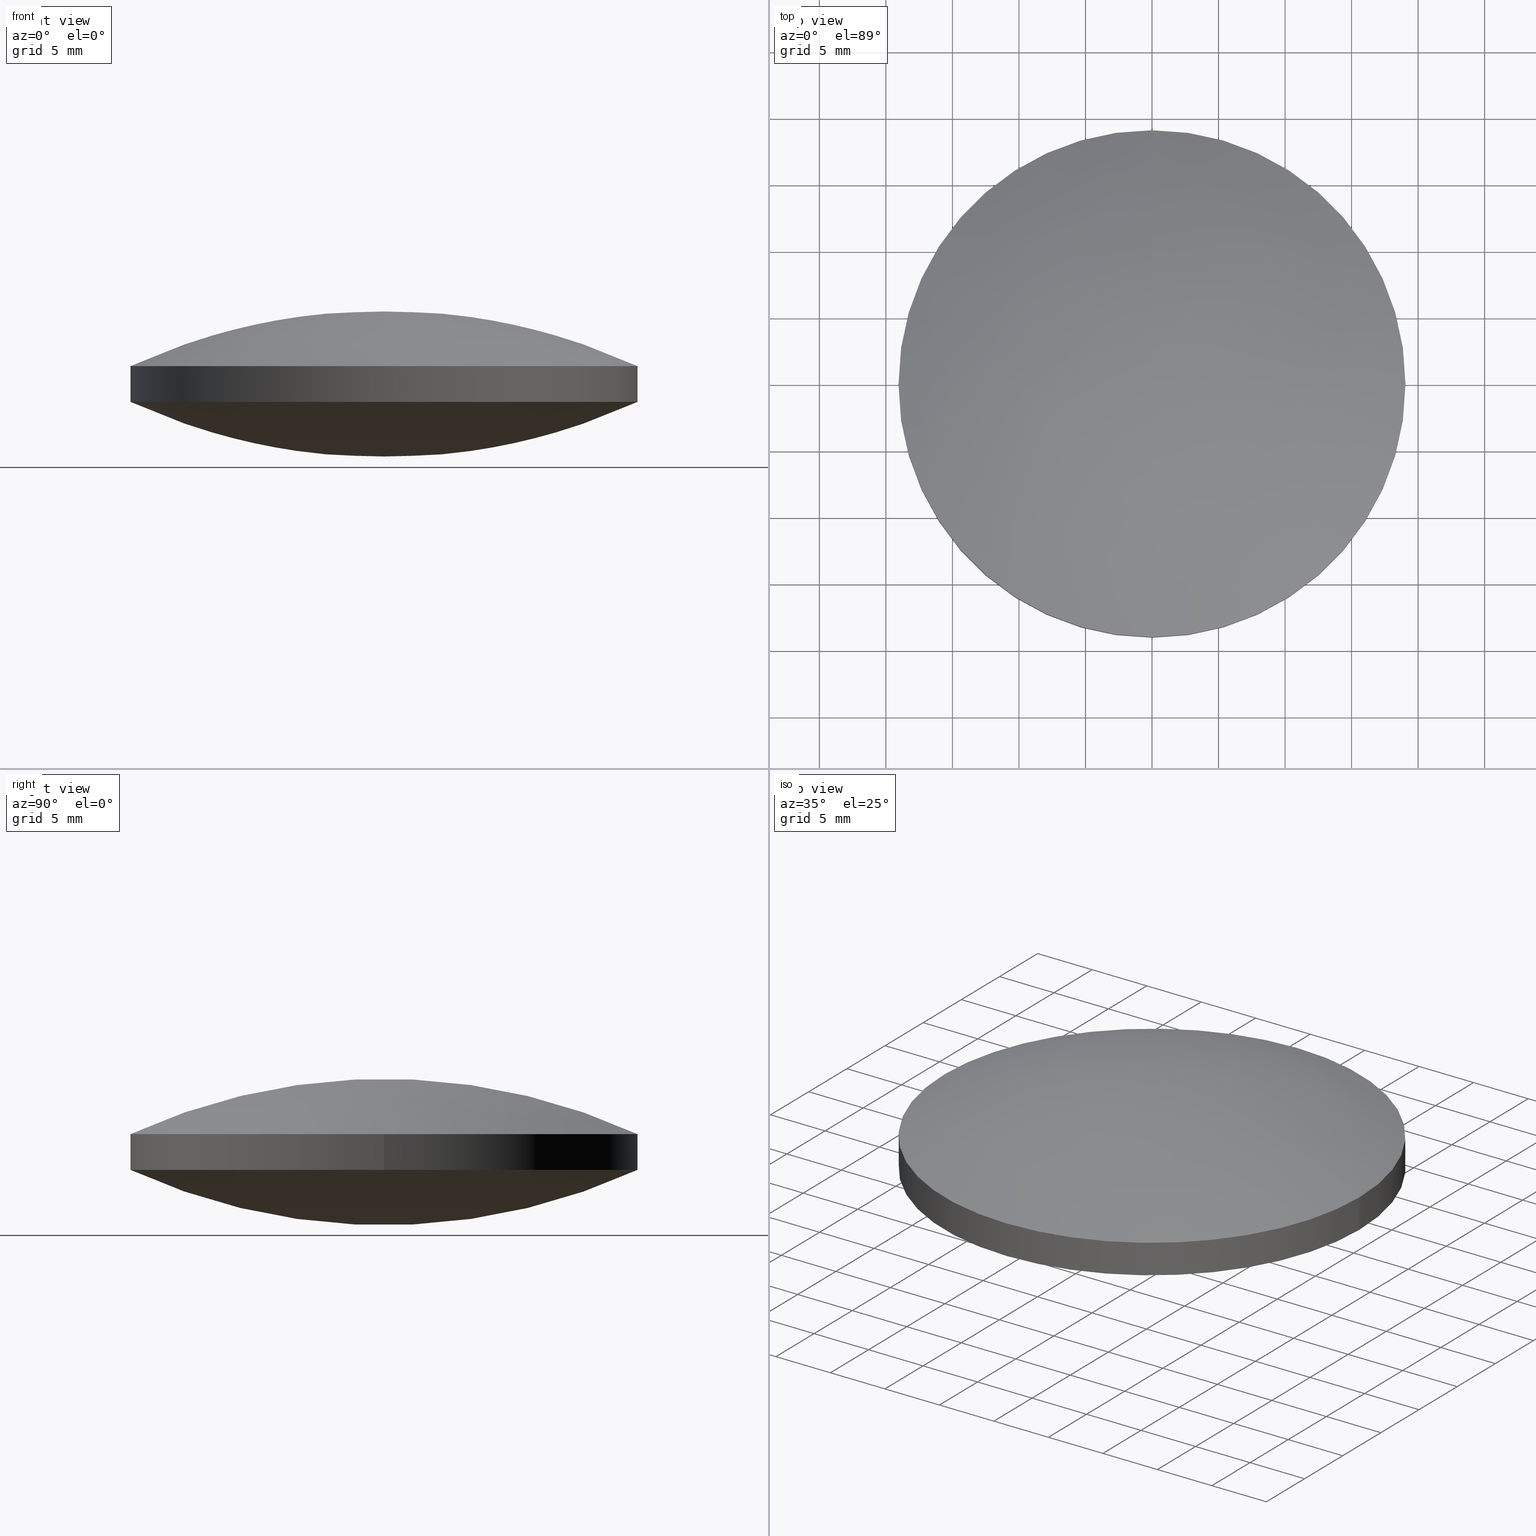
[diagram: canonical four-view strip — front | top / right | iso, engineering-drawing reading convention]
A machine part, canonical four-view strip (front | top / right | iso — engineering-drawing reading convention). The complete STEP part file that produces these views, byte-faithful:
ISO-10303-21;
HEADER;
FILE_DESCRIPTION (( 'STEP AP203' ),
    '1' );
FILE_NAME ('111-1404E UVFS bi-cx 38.1 F50.STEP',
    '2019-01-07T12:56:53',
    ( '' ),
    ( '' ),
    'SwSTEP 2.0',
    'SolidWorks 2017',
    '' );
FILE_SCHEMA (( 'CONFIG_CONTROL_DESIGN' ));
ENDSEC;

DATA;
#1 = VERTEX_POINT ( 'NONE', #118 ) ;
#2 = DIRECTION ( 'NONE',  ( 1.000000000000000000, -8.881784197001252300E-016, 0.0000000000000000000 ) ) ;
#3 = ORIENTED_EDGE ( 'NONE', *, *, #78, .F. ) ;
#4 = DIRECTION ( 'NONE',  ( -0.0000000000000000000, -0.0000000000000000000, -1.000000000000000000 ) ) ;
#5 = CARTESIAN_POINT ( 'NONE',  ( 6.859724987162779900, -6.845478120576448300, -1.511125564110183700 ) ) ;
#6 = DIRECTION ( 'NONE',  ( -0.0000000000000000000, -0.0000000000000000000, -1.000000000000000000 ) ) ;
#7 = EDGE_CURVE ( 'NONE', #292, #1, #197, .T. ) ;
#8 = PERSON_AND_ORGANIZATION ( #71, #280 ) ;
#9 = ORIENTED_EDGE ( 'NONE', *, *, #35, .T. ) ;
#10 = AXIS2_PLACEMENT_3D ( 'NONE', #148, #28, #2 ) ;
#11 = CARTESIAN_POINT ( 'NONE',  ( -19.05000000000000400, 1.444773732675583000E-015, 4.153809354856820200 ) ) ;
#12 = ORIENTED_EDGE ( 'NONE', *, *, #288, .F. ) ;
#13 = AXIS2_PLACEMENT_3D ( 'NONE', #33, #55, #127 ) ;
#14 = DIRECTION ( 'NONE',  ( -1.000000000000000000, 0.0000000000000000000, 3.208982423888019900E-016 ) ) ;
#15 = CARTESIAN_POINT ( 'NONE',  ( 0.0000000000000000000, 0.0000000000000000000, 0.0000000000000000000 ) ) ;
#16 = PERSON_AND_ORGANIZATION ( #71, #280 ) ;
#17 = ORIENTED_EDGE ( 'NONE', *, *, #293, .T. ) ;
#18 = APPROVAL_STATUS ( 'not_yet_approved' ) ;
#19 = APPROVAL_PERSON_ORGANIZATION ( #144, #232, #191 ) ;
#20 = AXIS2_PLACEMENT_3D ( 'NONE', #215, #24, #251 ) ;
#21 = PERSON_AND_ORGANIZATION ( #71, #280 ) ;
#22 = VERTEX_POINT ( 'NONE', #145 ) ;
#23 = CC_DESIGN_APPROVAL ( #92, ( #291 ) ) ;
#24 = DIRECTION ( 'NONE',  ( 0.0000000000000000000, 0.0000000000000000000, 1.000000000000000000 ) ) ;
#25 = LOCAL_TIME ( 14, 56, 53.00000000000000000, #294 ) ;
#26 = AXIS2_PLACEMENT_3D ( 'NONE', #146, #255, #121 ) ;
#27 = ADVANCED_FACE ( 'NONE', ( #295 ), #269, .T. ) ;
#28 = DIRECTION ( 'NONE',  ( -0.0000000000000000000, -0.0000000000000000000, -1.000000000000000000 ) ) ;
#29 = AXIS2_PLACEMENT_3D ( 'NONE', #159, #263, #39 ) ;
#30 = LINE ( 'NONE', #209, #213 ) ;
#31 = CARTESIAN_POINT ( 'NONE',  ( -13.56008348748277600, -6.845478120576441200, 11.04108377331125400 ) ) ;
#32 = AXIS2_PLACEMENT_3D ( 'NONE', #15, #187, #228 ) ;
#33 = CARTESIAN_POINT ( 'NONE',  ( -4.662936703425659800E-015, -8.881784197001250400E-016, 6.846190645143179800 ) ) ;
#34 = CARTESIAN_POINT ( 'NONE',  ( -6.859724987162827000, -6.845478120576445700, -1.511125564110184200 ) ) ;
#35 = EDGE_CURVE ( 'NONE', #1, #219, #214, .T. ) ;
#36 = DIRECTION ( 'NONE',  ( 1.000000000000000000, 0.0000000000000000000, 0.0000000000000000000 ) ) ;
#37 = CARTESIAN_POINT ( 'NONE',  ( 11.90673879215715300, -19.26412198409376600, 5.456680184154031100 ) ) ;
#38 = DATE_AND_TIME ( #93, #45 ) ;
#39 = DIRECTION ( 'NONE',  ( 1.000000000000000000, 8.881784197001252300E-016, 0.0000000000000000000 ) ) ;
#40 = AXIS2_PLACEMENT_3D ( 'NONE', #241, #14, #130 ) ;
#41 = CARTESIAN_POINT ( 'NONE',  ( 6.023337074847408000, -19.26412198409376600, 6.747483712963816800 ) ) ;
#42 = CC_DESIGN_PERSON_AND_ORGANIZATION_ASSIGNMENT ( #21, #212, ( #291 ) ) ;
#43 = ORIENTED_EDGE ( 'NONE', *, *, #78, .T. ) ;
#44 = APPROVAL_ROLE ( '' ) ;
#45 = LOCAL_TIME ( 14, 56, 53.00000000000000000, #103 ) ;
#46 = EDGE_LOOP ( 'NONE', ( #63, #192, #230, #171, #123, #94 ) ) ;
#47 = CLOSED_SHELL ( 'NONE', ( #124, #119, #205, #96, #27, #200 ) ) ;
#48 =( BOUNDED_SURFACE ( )  B_SPLINE_SURFACE ( 3, 3, ( 
 ( #185, #37, #41, #82 ),
 ( #135, #57, #206, #58 ),
 ( #101, #224, #133, #80 ),
 ( #102, #289, #134, #227 ) ),
 .UNSPECIFIED., .F., .F., .F. ) 
 B_SPLINE_SURFACE_WITH_KNOTS ( ( 4, 4 ),
 ( 4, 4 ),
 ( 0.0000000000000000000, 1.000000000000000000 ),
 ( 0.0000000000000000000, 1.000000000000000000 ),
 .UNSPECIFIED. ) 
 GEOMETRIC_REPRESENTATION_ITEM ( )  RATIONAL_B_SPLINE_SURFACE ( (
 ( 1.000000000000000000, 0.9845118682220205300, 0.9845118682220205300, 1.000000000000000000),
 ( 0.9380460913893327000, 0.9235175099120761500, 0.9235175099120761500, 0.9380460913893327000),
 ( 0.9380460913893327000, 0.9235175099120761500, 0.9235175099120761500, 0.9380460913893327000),
 ( 1.000000000000000000, 0.9845118682220205300, 0.9845118682220205300, 1.000000000000000000) ) ) 
 REPRESENTATION_ITEM ( '' )  SURFACE ( )  );
#49 = DIRECTION ( 'NONE',  ( 1.000000000000000000, 0.0000000000000000000, 0.0000000000000000000 ) ) ;
#50 = APPROVAL_PERSON_ORGANIZATION ( #8, #152, #44 ) ;
#51 = CC_DESIGN_APPROVAL ( #152, ( #231 ) ) ;
#52 = ORIENTED_EDGE ( 'NONE', *, *, #244, .T. ) ;
#53 = CARTESIAN_POINT ( 'NONE',  ( 6.023337074847367100, -19.26412198409376200, 4.252516287036197400 ) ) ;
#54 = CARTESIAN_POINT ( 'NONE',  ( -17.37683644862781000, 19.26412198409373700, 8.064950468004463200 ) ) ;
#55 = DIRECTION ( 'NONE',  ( -0.0000000000000000000, -0.0000000000000000000, -1.000000000000000000 ) ) ;
#56 = CARTESIAN_POINT ( 'NONE',  ( -17.37683644862777800, 19.26412198409374800, 2.935049531995540800 ) ) ;
#57 = CARTESIAN_POINT ( 'NONE',  ( 13.56008348748281700, -6.845478120576441200, 11.04108377331124300 ) ) ;
#58 = CARTESIAN_POINT ( 'NONE',  ( 2.775557561562891400E-014, -6.845478120576441200, 12.51112556411020000 ) ) ;
#59 = DATE_AND_TIME ( #162, #122 ) ;
#60 = ORIENTED_EDGE ( 'NONE', *, *, #147, .T. ) ;
#61 = CARTESIAN_POINT ( 'NONE',  ( -4.662936703425659800E-015, -8.881784197001250400E-016, 4.153809354856820200 ) ) ;
#62 = DIRECTION ( 'NONE',  ( 0.0000000000000000000, 0.0000000000000000000, 1.000000000000000000 ) ) ;
#63 = ORIENTED_EDGE ( 'NONE', *, *, #147, .F. ) ;
#64 = EDGE_CURVE ( 'NONE', #88, #276, #281, .T. ) ;
#65 = UNCERTAINTY_MEASURE_WITH_UNIT (LENGTH_MEASURE( 1.000000000000000100E-005 ), #272, 'distance_accuracy_value', 'NONE');
#66 = SHAPE_DEFINITION_REPRESENTATION ( #110, #141 ) ;
#67 = ORIENTED_EDGE ( 'NONE', *, *, #114, .F. ) ;
#68 = CC_DESIGN_PERSON_AND_ORGANIZATION_ASSIGNMENT ( #271, #140, ( #180 ) ) ;
#69 = COORDINATED_UNIVERSAL_TIME_OFFSET ( 2, 0, .AHEAD. ) ;
#70 = CIRCLE ( 'NONE', #258, 19.05000000000000100 ) ;
#71 = PERSON ( 'UNSPECIFIED', 'UNSPECIFIED', 'UNSPECIFIED', ('UNSPECIFIED'), ('UNSPECIFIED'), ('UNSPECIFIED') ) ;
#72 = LINE ( 'NONE', #11, #259 ) ;
#73 = CARTESIAN_POINT ( 'NONE',  ( 6.023337074847367100, 19.26412198409373400, 4.252516287036183200 ) ) ;
#74 = CARTESIAN_POINT ( 'NONE',  ( -6.859724987162828700, 6.845478120576419900, -1.511125564110194600 ) ) ;
#75 = PERSON_AND_ORGANIZATION ( #71, #280 ) ;
#76 = CARTESIAN_POINT ( 'NONE',  ( -1.872193478806382800E-014, 6.845478120576418100, -1.511125564110191900 ) ) ;
#77 = CARTESIAN_POINT ( 'NONE',  ( -17.37683644862777800, -19.26412198409376600, 2.935049531995540800 ) ) ;
#78 = EDGE_CURVE ( 'NONE', #219, #173, #70, .T. ) ;
#79 = CARTESIAN_POINT ( 'NONE',  ( -19.05000000000000400, 1.444773732675583000E-015, 4.153809354856820200 ) ) ;
#80 = CARTESIAN_POINT ( 'NONE',  ( 2.775557561562891400E-014, 6.845478120576424400, 12.51112556411020000 ) ) ;
#81 = DIRECTION ( 'NONE',  ( 1.000000000000000000, -8.881784197001252300E-016, 0.0000000000000000000 ) ) ;
#82 = CARTESIAN_POINT ( 'NONE',  ( 2.428612866367529900E-014, -19.26412198409376600, 6.747483712963818500 ) ) ;
#83 = EDGE_CURVE ( 'NONE', #247, #88, #104, .T. ) ;
#84 = MECHANICAL_CONTEXT ( 'NONE', #138, 'mechanical' ) ;
#85 = APPLICATION_PROTOCOL_DEFINITION ( 'international standard', 'config_control_design', 1994, #168 ) ;
#86 = APPROVAL_STATUS ( 'not_yet_approved' ) ;
#87 = CALENDAR_DATE ( 2019, 7, 1 ) ;
#88 = VERTEX_POINT ( 'NONE', #253 ) ;
#89 = CARTESIAN_POINT ( 'NONE',  ( -17.37683644862781000, -19.26412198409375900, 8.064950468004477500 ) ) ;
#90 = CARTESIAN_POINT ( 'NONE',  ( -11.90673879215715300, -19.26412198409375900, 5.543319815845978700 ) ) ;
#91 = CARTESIAN_POINT ( 'NONE',  ( -6.023337074847408000, 19.26412198409373400, 4.252516287036182300 ) ) ;
#92 = APPROVAL ( #290, 'UNSPECIFIED' ) ;
#93 = CALENDAR_DATE ( 2019, 7, 1 ) ;
#94 = ORIENTED_EDGE ( 'NONE', *, *, #293, .F. ) ;
#95 = CARTESIAN_POINT ( 'NONE',  ( 17.37683644862777000, 19.26412198409373700, 8.064950468004450800 ) ) ;
#96 = ADVANCED_FACE ( 'NONE', ( #242 ), #190, .T. ) ;
#97 = CARTESIAN_POINT ( 'NONE',  ( 1.872193478806382100E-014, -6.845478120576441200, 12.51112556411019700 ) ) ;
#98 = CARTESIAN_POINT ( 'NONE',  ( -2.428612866367529900E-014, -19.26412198409376200, 4.252516287036193900 ) ) ;
#99 = CARTESIAN_POINT ( 'NONE',  ( -2.775557561562891400E-014, 6.845478120576420800, -1.511125564110197900 ) ) ;
#100 = ORIENTED_EDGE ( 'NONE', *, *, #229, .F. ) ;
#101 = CARTESIAN_POINT ( 'NONE',  ( 19.78974739472200600, 6.845478120576424400, 8.169304794638435400 ) ) ;
#102 = CARTESIAN_POINT ( 'NONE',  ( 17.37683644862781000, 19.26412198409374800, 2.935049531995533200 ) ) ;
#103 = COORDINATED_UNIVERSAL_TIME_OFFSET ( 2, 0, .AHEAD. ) ;
#104 = CIRCLE ( 'NONE', #156, 19.05000000000000100 ) ;
#105 = CC_DESIGN_PERSON_AND_ORGANIZATION_ASSIGNMENT ( #207, #111, ( #291 ) ) ;
#106 = APPROVAL_ROLE ( '' ) ;
#107 = ORIENTED_EDGE ( 'NONE', *, *, #244, .F. ) ;
#108 = PERSON_AND_ORGANIZATION_ROLE ( 'classification_officer' ) ;
#109 =( NAMED_UNIT ( * ) SI_UNIT ( $, .STERADIAN. ) SOLID_ANGLE_UNIT ( ) );
#110 = PRODUCT_DEFINITION_SHAPE ( 'NONE', 'NONE',  #180 ) ;
#111 = PERSON_AND_ORGANIZATION_ROLE ( 'creator' ) ;
#112 = CALENDAR_DATE ( 2019, 7, 1 ) ;
#113 = ORIENTED_EDGE ( 'NONE', *, *, #83, .F. ) ;
#114 = EDGE_CURVE ( 'NONE', #173, #292, #287, .T. ) ;
#115 = CARTESIAN_POINT ( 'NONE',  ( 1.687239224827240600E-014, -19.26412198409376600, 6.747483712963811400 ) ) ;
#116 = EDGE_LOOP ( 'NONE', ( #3, #139, #67 ) ) ;
#117 = CARTESIAN_POINT ( 'NONE',  ( -4.662936703425659800E-015, -8.881784197001250400E-016, 6.846190645143179800 ) ) ;
#118 = CARTESIAN_POINT ( 'NONE',  ( 19.04999999999999700, -8.881784197001250400E-016, 6.846190645143179800 ) ) ;
#119 = ADVANCED_FACE ( 'NONE', ( #188 ), #248, .T. ) ;
#120 = PRODUCT ( '111-1404E UVFS bi-cx 38.1 F50', '111-1404E UVFS bi-cx 38.1 F50', '', ( #84 ) ) ;
#121 = DIRECTION ( 'NONE',  ( 1.000000000000000000, 0.0000000000000000000, 0.0000000000000000000 ) ) ;
#122 = LOCAL_TIME ( 14, 56, 53.00000000000000000, #69 ) ;
#123 = ORIENTED_EDGE ( 'NONE', *, *, #136, .F. ) ;
#124 = ADVANCED_FACE ( 'NONE', ( #154 ), #239, .T. ) ;
#125 = CARTESIAN_POINT ( 'NONE',  ( -13.56008348748281600, -6.845478120576445700, -0.04108377331123050400 ) ) ;
#126 = CARTESIAN_POINT ( 'NONE',  ( -6.023337074847408000, -19.26412198409376200, 4.252516287036197400 ) ) ;
#127 = DIRECTION ( 'NONE',  ( 1.000000000000000000, 0.0000000000000000000, 0.0000000000000000000 ) ) ;
#128 = CARTESIAN_POINT ( 'NONE',  ( 19.78974739472196700, 6.845478120576419900, 2.830695205361553900 ) ) ;
#129 = CARTESIAN_POINT ( 'NONE',  ( -6.023337074847369800, -19.26412198409376600, 6.747483712963814100 ) ) ;
#130 = DIRECTION ( 'NONE',  ( 0.0000000000000000000, -1.000000000000000000, 0.0000000000000000000 ) ) ;
#131 = CARTESIAN_POINT ( 'NONE',  ( 1.690406712932035900E-014, -19.05000000000001100, 6.846190645143182400 ) ) ;
#132 = ORIENTED_EDGE ( 'NONE', *, *, #35, .F. ) ;
#133 = CARTESIAN_POINT ( 'NONE',  ( 6.859724987162828700, 6.845478120576423500, 12.51112556411019500 ) ) ;
#134 = CARTESIAN_POINT ( 'NONE',  ( 6.023337074847408000, 19.26412198409374800, 6.747483712963816800 ) ) ;
#135 = CARTESIAN_POINT ( 'NONE',  ( 19.78974739472200600, -6.845478120576441200, 8.169304794638435400 ) ) ;
#136 = EDGE_CURVE ( 'NONE', #247, #1, #30, .T. ) ;
#137 = DATE_AND_TIME ( #112, #174 ) ;
#138 = APPLICATION_CONTEXT ( 'configuration controlled 3d designs of mechanical parts and assemblies' ) ;
#139 = ORIENTED_EDGE ( 'NONE', *, *, #229, .T. ) ;
#140 = PERSON_AND_ORGANIZATION_ROLE ( 'creator' ) ;
#141 = ADVANCED_BREP_SHAPE_REPRESENTATION ( '111-1404E UVFS bi-cx 38.1 F50', ( #243, #32 ), #202 ) ;
#142 = SECURITY_CLASSIFICATION_LEVEL ( 'unclassified' ) ;
#143 = CALENDAR_DATE ( 2019, 7, 1 ) ;
#144 = PERSON_AND_ORGANIZATION ( #71, #280 ) ;
#145 = CARTESIAN_POINT ( 'NONE',  ( -1.690406712932035900E-014, 19.04999999999999400, 4.153809354856816700 ) ) ;
#146 = CARTESIAN_POINT ( 'NONE',  ( -4.662936703425659800E-015, -8.881784197001250400E-016, 4.153809354856820200 ) ) ;
#147 = EDGE_CURVE ( 'NONE', #276, #22, #254, .T. ) ;
#148 = CARTESIAN_POINT ( 'NONE',  ( -4.662936703425659800E-015, -8.881784197001250400E-016, 6.846190645143179800 ) ) ;
#149 = FACE_OUTER_BOUND ( 'NONE', #46, .T. ) ;
#150 = DIRECTION ( 'NONE',  ( -0.0000000000000000000, -0.0000000000000000000, -1.000000000000000000 ) ) ;
#151 = CARTESIAN_POINT ( 'NONE',  ( 17.37683644862777000, -19.26412198409376200, 8.064950468004465000 ) ) ;
#152 = APPROVAL ( #18, 'UNSPECIFIED' ) ;
#153 = CIRCLE ( 'NONE', #40, 45.76000000000000500 ) ;
#154 = FACE_OUTER_BOUND ( 'NONE', #163, .T. ) ;
#155 = CARTESIAN_POINT ( 'NONE',  ( 13.56008348748277300, 6.845478120576419000, -0.04108377331125002300 ) ) ;
#156 = AXIS2_PLACEMENT_3D ( 'NONE', #220, #6, #36 ) ;
#157 = CARTESIAN_POINT ( 'NONE',  ( -11.90673879215711800, 19.26412198409374800, 5.456680184154038200 ) ) ;
#158 = LOCAL_TIME ( 14, 56, 53.00000000000000000, #169 ) ;
#159 = CARTESIAN_POINT ( 'NONE',  ( -4.662936703425659800E-015, -8.881784197001250400E-016, 4.153809354856820200 ) ) ;
#160 = CARTESIAN_POINT ( 'NONE',  ( -3.552713678800500100E-015, -7.105427357601000300E-015, 45.76000000000000500 ) ) ;
#161 = AXIS2_PLACEMENT_3D ( 'NONE', #160, #210, #208 ) ;
#162 = CALENDAR_DATE ( 2019, 7, 1 ) ;
#163 = EDGE_LOOP ( 'NONE', ( #234, #52, #17 ) ) ;
#164 = DIRECTION ( 'NONE',  ( 1.000000000000000000, 0.0000000000000000000, 0.0000000000000000000 ) ) ;
#165 =( NAMED_UNIT ( * ) PLANE_ANGLE_UNIT ( ) SI_UNIT ( $, .RADIAN. ) );
#166 = DATE_TIME_ROLE ( 'creation_date' ) ;
#167 = CIRCLE ( 'NONE', #177, 19.05000000000000100 ) ;
#168 = APPLICATION_CONTEXT ( 'configuration controlled 3d designs of mechanical parts and assemblies' ) ;
#169 = COORDINATED_UNIVERSAL_TIME_OFFSET ( 2, 0, .AHEAD. ) ;
#170 = PRODUCT_RELATED_PRODUCT_CATEGORY ( 'detail', '', ( #120 ) ) ;
#171 = ORIENTED_EDGE ( 'NONE', *, *, #7, .T. ) ;
#172 = AXIS2_PLACEMENT_3D ( 'NONE', #245, #265, #164 ) ;
#173 = VERTEX_POINT ( 'NONE', #184 ) ;
#174 = LOCAL_TIME ( 14, 56, 53.00000000000000000, #186 ) ;
#175 = EDGE_LOOP ( 'NONE', ( #100, #132, #182 ) ) ;
#176 = CARTESIAN_POINT ( 'NONE',  ( 13.56008348748276900, -6.845478120576447400, -0.04108377331123874700 ) ) ;
#177 = AXIS2_PLACEMENT_3D ( 'NONE', #61, #225, #81 ) ;
#178 = CARTESIAN_POINT ( 'NONE',  ( -19.78974739472200300, -6.845478120576444800, 2.830695205361577900 ) ) ;
#179 = CARTESIAN_POINT ( 'NONE',  ( 19.78974739472196400, -6.845478120576448300, 2.830695205361565500 ) ) ;
#180 = PRODUCT_DEFINITION ( 'UNKNOWN', '', #291, #275 ) ;
#181 = CARTESIAN_POINT ( 'NONE',  ( -1.687239224827241200E-014, -19.26412198409376200, 4.252516287036198300 ) ) ;
#182 = ORIENTED_EDGE ( 'NONE', *, *, #7, .F. ) ;
#183 = CARTESIAN_POINT ( 'NONE',  ( -6.859724987162785200, -6.845478120576441200, 12.51112556411020000 ) ) ;
#184 = CARTESIAN_POINT ( 'NONE',  ( -19.05000000000000400, 1.444773732675583000E-015, 6.846190645143179800 ) ) ;
#185 = CARTESIAN_POINT ( 'NONE',  ( 17.37683644862781000, -19.26412198409376600, 2.935049531995533200 ) ) ;
#186 = COORDINATED_UNIVERSAL_TIME_OFFSET ( 2, 0, .AHEAD. ) ;
#187 = DIRECTION ( 'NONE',  ( 0.0000000000000000000, 0.0000000000000000000, 1.000000000000000000 ) ) ;
#188 = FACE_OUTER_BOUND ( 'NONE', #116, .T. ) ;
#189 = CARTESIAN_POINT ( 'NONE',  ( 19.04999999999999700, -8.881784197001250400E-016, 4.153809354856820200 ) ) ;
#190 =( BOUNDED_SURFACE ( )  B_SPLINE_SURFACE ( 3, 3, ( 
 ( #89, #90, #126, #98 ),
 ( #178, #125, #34, #257 ),
 ( #279, #261, #74, #99 ),
 ( #54, #237, #91, #238 ) ),
 .UNSPECIFIED., .F., .F., .F. ) 
 B_SPLINE_SURFACE_WITH_KNOTS ( ( 4, 4 ),
 ( 4, 4 ),
 ( 0.0000000000000000000, 1.000000000000000000 ),
 ( 0.0000000000000000000, 1.000000000000000000 ),
 .UNSPECIFIED. ) 
 GEOMETRIC_REPRESENTATION_ITEM ( )  RATIONAL_B_SPLINE_SURFACE ( (
 ( 1.000000000000000000, 0.9845118682220205300, 0.9845118682220205300, 1.000000000000000000),
 ( 0.9380460913893329300, 0.9235175099120763700, 0.9235175099120763700, 0.9380460913893329300),
 ( 0.9380460913893329300, 0.9235175099120763700, 0.9235175099120763700, 0.9380460913893329300),
 ( 1.000000000000000000, 0.9845118682220205300, 0.9845118682220205300, 1.000000000000000000) ) ) 
 REPRESENTATION_ITEM ( '' )  SURFACE ( )  );
#191 = APPROVAL_ROLE ( '' ) ;
#192 = ORIENTED_EDGE ( 'NONE', *, *, #288, .T. ) ;
#193 = DATE_TIME_ROLE ( 'classification_date' ) ;
#194 = ORIENTED_EDGE ( 'NONE', *, *, #64, .F. ) ;
#195 = CC_DESIGN_DATE_AND_TIME_ASSIGNMENT ( #249, #193, ( #231 ) ) ;
#196 = EDGE_LOOP ( 'NONE', ( #12, #194, #113, #250, #9, #43 ) ) ;
#197 = CIRCLE ( 'NONE', #10, 19.05000000000000100 ) ;
#198 = CARTESIAN_POINT ( 'NONE',  ( -19.78974739472198200, 6.845478120576424400, 8.169304794638444300 ) ) ;
#199 = CARTESIAN_POINT ( 'NONE',  ( -19.78974739472198200, -6.845478120576441200, 8.169304794638447800 ) ) ;
#200 = ADVANCED_FACE ( 'NONE', ( #278 ), #48, .T. ) ;
#201 = APPROVAL_DATE_TIME ( #59, #232 ) ;
#202 =( GEOMETRIC_REPRESENTATION_CONTEXT ( 3 ) GLOBAL_UNCERTAINTY_ASSIGNED_CONTEXT ( ( #65 ) ) GLOBAL_UNIT_ASSIGNED_CONTEXT ( ( #272, #165, #109 ) ) REPRESENTATION_CONTEXT ( 'NONE', 'WORKASPACE' ) );
#203 = CARTESIAN_POINT ( 'NONE',  ( -1.687239224827241200E-014, 19.26412198409373700, 4.252516287036184100 ) ) ;
#204 = CARTESIAN_POINT ( 'NONE',  ( 1.872193478806382100E-014, 6.845478120576424400, 12.51112556411019500 ) ) ;
#205 = ADVANCED_FACE ( 'NONE', ( #149 ), #218, .T. ) ;
#206 = CARTESIAN_POINT ( 'NONE',  ( 6.859724987162828700, -6.845478120576441200, 12.51112556411019500 ) ) ;
#207 = PERSON_AND_ORGANIZATION ( #71, #280 ) ;
#208 = DIRECTION ( 'NONE',  ( 0.0000000000000000000, -1.000000000000000000, 3.032733349609802100E-016 ) ) ;
#209 = CARTESIAN_POINT ( 'NONE',  ( 19.04999999999999700, -8.881784197001250400E-016, 4.153809354856820200 ) ) ;
#210 = DIRECTION ( 'NONE',  ( 1.000000000000000000, -1.018886140823510000E-031, -3.208982423888019900E-016 ) ) ;
#211 = CC_DESIGN_SECURITY_CLASSIFICATION ( #231, ( #291 ) ) ;
#212 = PERSON_AND_ORGANIZATION_ROLE ( 'design_supplier' ) ;
#213 = VECTOR ( 'NONE', #267, 1000.000000000000000 ) ;
#214 = CIRCLE ( 'NONE', #252, 19.05000000000000100 ) ;
#215 = CARTESIAN_POINT ( 'NONE',  ( -4.662936703425659800E-015, -8.881784197001250400E-016, 4.153809354856820200 ) ) ;
#216 = CC_DESIGN_DATE_AND_TIME_ASSIGNMENT ( #266, #166, ( #180 ) ) ;
#217 = CARTESIAN_POINT ( 'NONE',  ( 6.859724987162782600, 6.845478120576418100, -1.511125564110194200 ) ) ;
#218 = CYLINDRICAL_SURFACE ( 'NONE', #172, 19.05000000000000100 ) ;
#219 = VERTEX_POINT ( 'NONE', #131 ) ;
#220 = CARTESIAN_POINT ( 'NONE',  ( -4.662936703425659800E-015, -8.881784197001250400E-016, 4.153809354856820200 ) ) ;
#221 = CARTESIAN_POINT ( 'NONE',  ( -1.872193478806382500E-014, -6.845478120576450100, -1.511125564110181700 ) ) ;
#222 = CC_DESIGN_PERSON_AND_ORGANIZATION_ASSIGNMENT ( #75, #108, ( #231 ) ) ;
#223 = CIRCLE ( 'NONE', #161, 45.76000000000000500 ) ;
#224 = CARTESIAN_POINT ( 'NONE',  ( 13.56008348748281700, 6.845478120576423500, 11.04108377331124300 ) ) ;
#225 = DIRECTION ( 'NONE',  ( -0.0000000000000000000, -0.0000000000000000000, -1.000000000000000000 ) ) ;
#226 = PERSON_AND_ORGANIZATION ( #71, #280 ) ;
#227 = CARTESIAN_POINT ( 'NONE',  ( 2.428612866367529900E-014, 19.26412198409374800, 6.747483712963818500 ) ) ;
#228 = DIRECTION ( 'NONE',  ( 1.000000000000000000, 0.0000000000000000000, 0.0000000000000000000 ) ) ;
#229 = EDGE_CURVE ( 'NONE', #219, #292, #153, .T. ) ;
#230 = ORIENTED_EDGE ( 'NONE', *, *, #114, .T. ) ;
#231 = SECURITY_CLASSIFICATION ( '', '', #142 ) ;
#232 = APPROVAL ( #86, 'UNSPECIFIED' ) ;
#233 = DIRECTION ( 'NONE',  ( 1.000000000000000000, 0.0000000000000000000, 0.0000000000000000000 ) ) ;
#234 = ORIENTED_EDGE ( 'NONE', *, *, #83, .T. ) ;
#235 = APPROVAL_PERSON_ORGANIZATION ( #16, #92, #106 ) ;
#236 = CARTESIAN_POINT ( 'NONE',  ( 11.90673879215711400, 19.26412198409373400, 5.543319815845957300 ) ) ;
#237 = CARTESIAN_POINT ( 'NONE',  ( -11.90673879215715300, 19.26412198409373700, 5.543319815845964400 ) ) ;
#238 = CARTESIAN_POINT ( 'NONE',  ( -2.428612866367529900E-014, 19.26412198409373700, 4.252516287036178800 ) ) ;
#239 =( BOUNDED_SURFACE ( )  B_SPLINE_SURFACE ( 3, 3, ( 
 ( #181, #53, #282, #151 ),
 ( #221, #5, #176, #179 ),
 ( #76, #217, #155, #128 ),
 ( #203, #73, #236, #95 ) ),
 .UNSPECIFIED., .F., .F., .T. ) 
 B_SPLINE_SURFACE_WITH_KNOTS ( ( 4, 4 ),
 ( 4, 4 ),
 ( 0.0000000000000000000, 1.000000000000000000 ),
 ( 0.0000000000000000000, 1.000000000000000000 ),
 .UNSPECIFIED. ) 
 GEOMETRIC_REPRESENTATION_ITEM ( )  RATIONAL_B_SPLINE_SURFACE ( (
 ( 1.000000000000000000, 0.9845118682220205300, 0.9845118682220205300, 1.000000000000000000),
 ( 0.9380460913893329300, 0.9235175099120763700, 0.9235175099120763700, 0.9380460913893329300),
 ( 0.9380460913893329300, 0.9235175099120763700, 0.9235175099120763700, 0.9380460913893329300),
 ( 1.000000000000000000, 0.9845118682220205300, 0.9845118682220205300, 1.000000000000000000) ) ) 
 REPRESENTATION_ITEM ( '' )  SURFACE ( )  );
#240 = CARTESIAN_POINT ( 'NONE',  ( -6.859724987162784300, 6.845478120576423500, 12.51112556411019500 ) ) ;
#241 = CARTESIAN_POINT ( 'NONE',  ( 3.552713678800500100E-015, -7.105427357601000300E-015, -34.75999999999999800 ) ) ;
#242 = FACE_OUTER_BOUND ( 'NONE', #246, .T. ) ;
#243 = MANIFOLD_SOLID_BREP ( 'Imported1', #47 ) ;
#244 = EDGE_CURVE ( 'NONE', #88, #22, #223, .T. ) ;
#245 = CARTESIAN_POINT ( 'NONE',  ( -4.662936703425659800E-015, -8.881784197001250400E-016, 4.153809354856820200 ) ) ;
#246 = EDGE_LOOP ( 'NONE', ( #107, #260, #60 ) ) ;
#247 = VERTEX_POINT ( 'NONE', #189 ) ;
#248 =( BOUNDED_SURFACE ( )  B_SPLINE_SURFACE ( 3, 3, ( 
 ( #115, #129, #284, #77 ),
 ( #97, #183, #31, #199 ),
 ( #204, #240, #262, #198 ),
 ( #256, #285, #157, #56 ) ),
 .UNSPECIFIED., .F., .F., .F. ) 
 B_SPLINE_SURFACE_WITH_KNOTS ( ( 4, 4 ),
 ( 4, 4 ),
 ( 0.0000000000000000000, 1.000000000000000000 ),
 ( 0.0000000000000000000, 1.000000000000000000 ),
 .UNSPECIFIED. ) 
 GEOMETRIC_REPRESENTATION_ITEM ( )  RATIONAL_B_SPLINE_SURFACE ( (
 ( 1.000000000000000000, 0.9845118682220205300, 0.9845118682220205300, 1.000000000000000000),
 ( 0.9380460913893327000, 0.9235175099120761500, 0.9235175099120761500, 0.9380460913893327000),
 ( 0.9380460913893327000, 0.9235175099120761500, 0.9235175099120761500, 0.9380460913893327000),
 ( 1.000000000000000000, 0.9845118682220205300, 0.9845118682220205300, 1.000000000000000000) ) ) 
 REPRESENTATION_ITEM ( '' )  SURFACE ( )  );
#249 = DATE_AND_TIME ( #143, #158 ) ;
#250 = ORIENTED_EDGE ( 'NONE', *, *, #136, .T. ) ;
#251 = DIRECTION ( 'NONE',  ( 1.000000000000000000, 0.0000000000000000000, 0.0000000000000000000 ) ) ;
#252 = AXIS2_PLACEMENT_3D ( 'NONE', #117, #4, #233 ) ;
#253 = CARTESIAN_POINT ( 'NONE',  ( -1.690406712932036500E-014, -19.05000000000000400, 4.153809354856819300 ) ) ;
#254 = CIRCLE ( 'NONE', #29, 19.05000000000000100 ) ;
#255 = DIRECTION ( 'NONE',  ( -0.0000000000000000000, -0.0000000000000000000, -1.000000000000000000 ) ) ;
#256 = CARTESIAN_POINT ( 'NONE',  ( 1.687239224827240600E-014, 19.26412198409374800, 6.747483712963811400 ) ) ;
#257 = CARTESIAN_POINT ( 'NONE',  ( -2.775557561562891400E-014, -6.845478120576446600, -1.511125564110187700 ) ) ;
#258 = AXIS2_PLACEMENT_3D ( 'NONE', #277, #150, #49 ) ;
#259 = VECTOR ( 'NONE', #62, 1000.000000000000000 ) ;
#260 = ORIENTED_EDGE ( 'NONE', *, *, #64, .T. ) ;
#261 = CARTESIAN_POINT ( 'NONE',  ( -13.56008348748281900, 6.845478120576419900, -0.04108377331124048200 ) ) ;
#262 = CARTESIAN_POINT ( 'NONE',  ( -13.56008348748277800, 6.845478120576423500, 11.04108377331124800 ) ) ;
#263 = DIRECTION ( 'NONE',  ( -0.0000000000000000000, -0.0000000000000000000, -1.000000000000000000 ) ) ;
#264 = APPROVAL_DATE_TIME ( #137, #92 ) ;
#265 = DIRECTION ( 'NONE',  ( 0.0000000000000000000, 0.0000000000000000000, 1.000000000000000000 ) ) ;
#266 = DATE_AND_TIME ( #87, #25 ) ;
#267 = DIRECTION ( 'NONE',  ( 0.0000000000000000000, 0.0000000000000000000, 1.000000000000000000 ) ) ;
#268 = CC_DESIGN_PERSON_AND_ORGANIZATION_ASSIGNMENT ( #226, #270, ( #120 ) ) ;
#269 = CYLINDRICAL_SURFACE ( 'NONE', #20, 19.05000000000000100 ) ;
#270 = PERSON_AND_ORGANIZATION_ROLE ( 'design_owner' ) ;
#271 = PERSON_AND_ORGANIZATION ( #71, #280 ) ;
#272 =( LENGTH_UNIT ( ) NAMED_UNIT ( * ) SI_UNIT ( .MILLI., .METRE. ) );
#273 = APPLICATION_PROTOCOL_DEFINITION ( 'international standard', 'config_control_design', 1994, #138 ) ;
#274 = APPROVAL_DATE_TIME ( #38, #152 ) ;
#275 = DESIGN_CONTEXT ( 'detailed design', #168, 'design' ) ;
#276 = VERTEX_POINT ( 'NONE', #79 ) ;
#277 = CARTESIAN_POINT ( 'NONE',  ( -4.662936703425659800E-015, -8.881784197001250400E-016, 6.846190645143179800 ) ) ;
#278 = FACE_OUTER_BOUND ( 'NONE', #175, .T. ) ;
#279 = CARTESIAN_POINT ( 'NONE',  ( -19.78974739472200600, 6.845478120576421700, 2.830695205361568200 ) ) ;
#280 = ORGANIZATION ( 'UNSPECIFIED', 'UNSPECIFIED', '' ) ;
#281 = CIRCLE ( 'NONE', #26, 19.05000000000000100 ) ;
#282 = CARTESIAN_POINT ( 'NONE',  ( 11.90673879215711400, -19.26412198409376200, 5.543319815845970700 ) ) ;
#283 = CC_DESIGN_APPROVAL ( #232, ( #180 ) ) ;
#284 = CARTESIAN_POINT ( 'NONE',  ( -11.90673879215711800, -19.26412198409376600, 5.456680184154038200 ) ) ;
#285 = CARTESIAN_POINT ( 'NONE',  ( -6.023337074847369800, 19.26412198409374800, 6.747483712963814100 ) ) ;
#286 = CARTESIAN_POINT ( 'NONE',  ( 1.690406712932035900E-014, 19.05000000000000400, 6.846190645143182400 ) ) ;
#287 = CIRCLE ( 'NONE', #13, 19.05000000000000100 ) ;
#288 = EDGE_CURVE ( 'NONE', #276, #173, #72, .T. ) ;
#289 = CARTESIAN_POINT ( 'NONE',  ( 11.90673879215715300, 19.26412198409374800, 5.456680184154031100 ) ) ;
#290 = APPROVAL_STATUS ( 'not_yet_approved' ) ;
#291 = PRODUCT_DEFINITION_FORMATION_WITH_SPECIFIED_SOURCE ( 'ANY', '', #120, .NOT_KNOWN. ) ;
#292 = VERTEX_POINT ( 'NONE', #286 ) ;
#293 = EDGE_CURVE ( 'NONE', #22, #247, #167, .T. ) ;
#294 = COORDINATED_UNIVERSAL_TIME_OFFSET ( 2, 0, .AHEAD. ) ;
#295 = FACE_OUTER_BOUND ( 'NONE', #196, .T. ) ;
ENDSEC;
END-ISO-10303-21;
